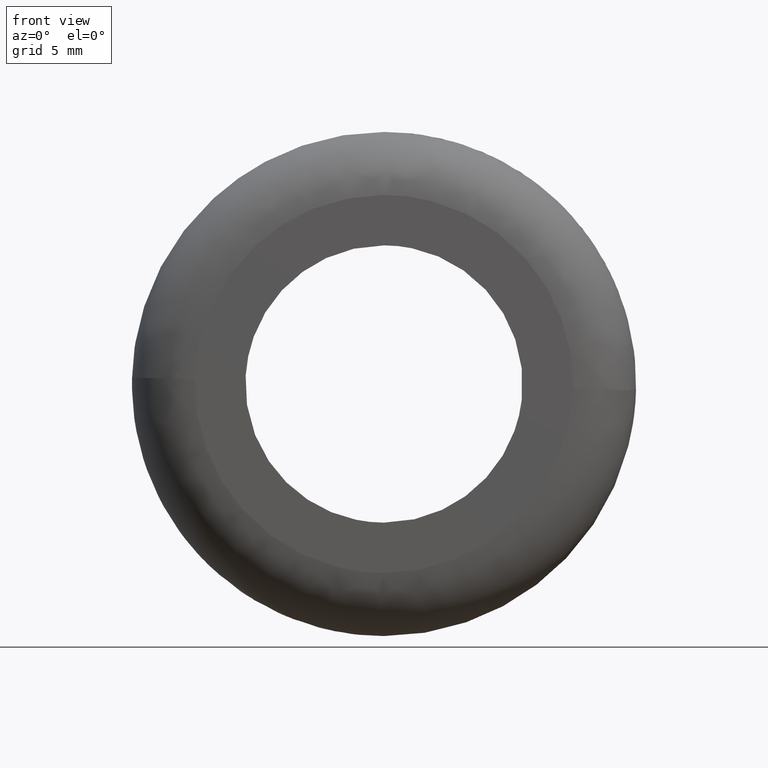
[diagram: clean part render]
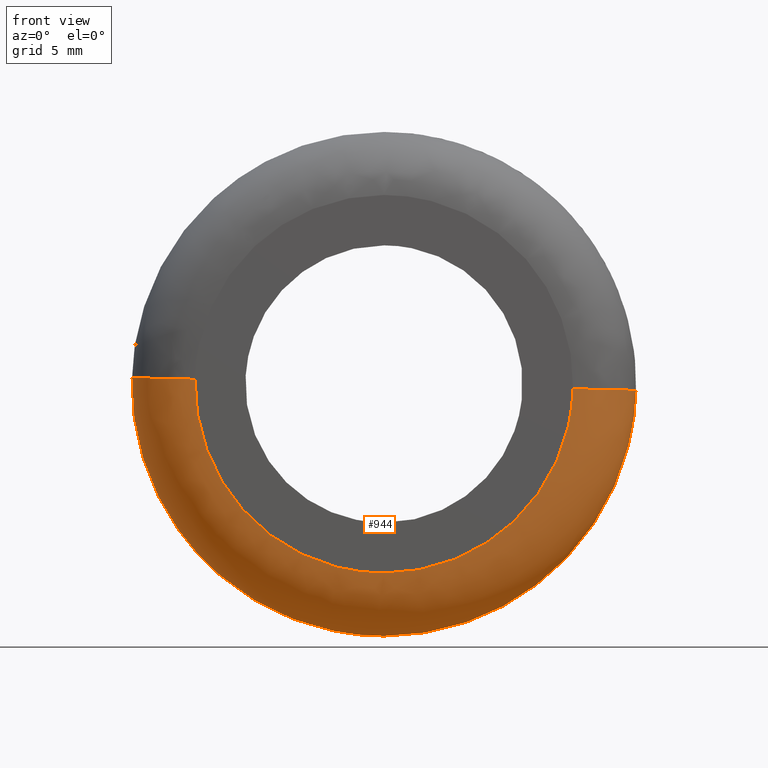
[diagram: same view with one face highlighted and labeled with its STEP entity id]
A machine part, front view. The second image highlights one B-rep face of the part: STEP entity #944.
In plain terms, the highlighted face is a freeform B-spline surface patch.
Its self-contained STEP definition (entity closure, byte-faithful):
#137=CARTESIAN_POINT('',(19.993683785665869,4.999999999963970,-0.502601908872003));
#138=VERTEX_POINT('',#137);
#154=CARTESIAN_POINT('',(0.0,5.0,-20.0));
#155=VERTEX_POINT('',#154);
#156=CARTESIAN_POINT('',(0.0,5.0,-20.0));
#157=CARTESIAN_POINT('',(19.503557523602723,5.0,-20.0));
#158=CARTESIAN_POINT('',(19.993683785665869,4.999999999963970,-0.502601908872003));
#166=(BOUNDED_CURVE()B_SPLINE_CURVE(2,(#156,#157,#158),.UNSPECIFIED.,.F.,.U.)B_SPLINE_CURVE_WITH_KNOTS((3,3),(0.0,0.245579891769716),.UNSPECIFIED.)CURVE()GEOMETRIC_REPRESENTATION_ITEM()RATIONAL_B_SPLINE_CURVE((1.0,0.712285260094835,0.989826157681368))REPRESENTATION_ITEM(''));
#167=EDGE_CURVE('',#155,#138,#166,.T.);
#169=CARTESIAN_POINT('',(-13.086792487373920,5.0,-15.124016080142621));
#170=VERTEX_POINT('',#169);
#171=CARTESIAN_POINT('',(-13.086792487373925,5.000000000000001,-15.124016080142617));
#172=CARTESIAN_POINT('',(-7.451762688190008,5.0,-20.0));
#173=CARTESIAN_POINT('',(0.0,5.0,-20.0));
#181=(BOUNDED_CURVE()B_SPLINE_CURVE(2,(#171,#172,#173),.UNSPECIFIED.,.F.,.U.)B_SPLINE_CURVE_WITH_KNOTS((3,3),(0.885882132988790,1.0),.UNSPECIFIED.)CURVE()GEOMETRIC_REPRESENTATION_ITEM()RATIONAL_B_SPLINE_CURVE((0.854663299542762,0.866302602427844,1.0))REPRESENTATION_ITEM(''));
#182=EDGE_CURVE('',#170,#155,#181,.T.);
#226=CARTESIAN_POINT('',(-19.993683785665858,4.999999999963972,0.502601908872007));
#227=VERTEX_POINT('',#226);
#228=CARTESIAN_POINT('',(-19.993683785665858,4.999999999963972,0.502601908872007));
#229=CARTESIAN_POINT('',(-19.999999999999996,5.0,0.251340642472851));
#230=CARTESIAN_POINT('',(-20.0,5.0,-3.673819E-016));
#231=CARTESIAN_POINT('',(-20.0,5.0,-9.142026655511200));
#232=CARTESIAN_POINT('',(-13.086792487373922,5.0,-15.124016080142626));
#240=(BOUNDED_CURVE()B_SPLINE_CURVE(2,(#228,#229,#230,#231,#232),.UNSPECIFIED.,.F.,.U.)B_SPLINE_CURVE_WITH_KNOTS((3,2,3),(0.745579891769716,0.750000000000000,0.885882132988790),.UNSPECIFIED.)CURVE()GEOMETRIC_REPRESENTATION_ITEM()RATIONAL_B_SPLINE_CURVE((0.989826157681368,0.994821521091713,1.0,0.840804178758703,0.854663299542762))REPRESENTATION_ITEM(''));
#241=EDGE_CURVE('',#227,#170,#240,.T.);
#856=CARTESIAN_POINT('',(-19.981519166674136,5.348620922722298,0.502296114257239));
#857=CARTESIAN_POINT('',(-20.483815280931395,5.348620922722299,-19.479223052416906));
#858=CARTESIAN_POINT('',(-0.502296114257244,5.348620922722298,-19.981519166674136));
#859=CARTESIAN_POINT('',(19.479223052416906,5.348620922722299,-20.483815280931395));
#860=CARTESIAN_POINT('',(19.981519166674136,5.348620922722298,-0.502296114257246));
#861=CARTESIAN_POINT('',(-20.382257219483595,-0.386678407463598,0.512369881175668));
#862=CARTESIAN_POINT('',(-20.894627100659257,-0.386678407463598,-19.869887338307915));
#863=CARTESIAN_POINT('',(-0.512369881175673,-0.386678407463598,-20.382257219483595));
#864=CARTESIAN_POINT('',(19.869887338307915,-0.386678407463598,-20.894627100659257));
#865=CARTESIAN_POINT('',(20.382257219483595,-0.386678407463598,-0.512369881175675));
#866=CARTESIAN_POINT('',(-14.648619477158034,0.012038247250253,0.368237498922565));
#867=CARTESIAN_POINT('',(-15.016856976080604,0.012038247250253,-14.280381978235466));
#868=CARTESIAN_POINT('',(-0.368237498922569,0.012038247250253,-14.648619477158034));
#869=CARTESIAN_POINT('',(14.280381978235466,0.012038247250253,-15.016856976080604));
#870=CARTESIAN_POINT('',(14.648619477158034,0.012038247250253,-0.368237498922570));
#878=(BOUNDED_SURFACE()B_SPLINE_SURFACE(2,2,((#856,#861,#866),(#857,#862,#867),(#858,#863,#868),(#859,#864,#869),(#860,#865,#870)),.UNSPECIFIED.,.F.,.F.,.U.)B_SPLINE_SURFACE_WITH_KNOTS((3,2,3),(3,3),(0.0,33.116923622001451,66.233847244002902),(0.0,9.111851625964388),.UNSPECIFIED.)GEOMETRIC_REPRESENTATION_ITEM()RATIONAL_B_SPLINE_SURFACE(((0.910892941386805,0.599412934105556,0.915966621324616),(0.644098575789570,0.423848950436964,0.647686209279166),(0.910892941386805,0.599412934105556,0.915966621324616),(0.644098575789570,0.423848950436964,0.647686209279166),(0.910892941386805,0.599412934105556,0.915966621324616)))REPRESENTATION_ITEM('')SURFACE());
#879=ORIENTED_EDGE('',*,*,#241,.T.);
#880=ORIENTED_EDGE('',*,*,#182,.T.);
#881=ORIENTED_EDGE('',*,*,#167,.T.);
#882=CARTESIAN_POINT('',(14.995262839473099,-3.951179E-016,-0.376951431683386));
#883=VERTEX_POINT('',#882);
#884=CARTESIAN_POINT('',(19.993683785665866,4.999999999963970,-0.502601908872003));
#885=CARTESIAN_POINT('',(19.993683785593962,4.487558E-010,-0.502601908864937));
#886=CARTESIAN_POINT('',(14.995262839473099,-3.951179E-016,-0.376951431683386));
#894=(BOUNDED_CURVE()B_SPLINE_CURVE(2,(#884,#885,#886),.UNSPECIFIED.,.F.,.U.)B_SPLINE_CURVE_WITH_KNOTS((3,3),(-1.723441281969931,-0.263586879020719),.UNSPECIFIED.)CURVE()GEOMETRIC_REPRESENTATION_ITEM()RATIONAL_B_SPLINE_CURVE((0.883897567133435,0.626638727256570,0.888510409029225))REPRESENTATION_ITEM(''));
#895=EDGE_CURVE('',#138,#883,#894,.T.);
#896=ORIENTED_EDGE('',*,*,#895,.T.);
#897=CARTESIAN_POINT('',(0.0,-2.664535E-015,-15.0));
#898=VERTEX_POINT('',#897);
#899=CARTESIAN_POINT('',(0.0,-2.664535E-015,-15.0));
#900=CARTESIAN_POINT('',(14.627668142655715,-2.664535E-015,-15.0));
#901=CARTESIAN_POINT('',(14.995262839473106,-3.951179E-016,-0.376951431683386));
#909=(BOUNDED_CURVE()B_SPLINE_CURVE(2,(#899,#900,#901),.UNSPECIFIED.,.F.,.U.)B_SPLINE_CURVE_WITH_KNOTS((3,3),(0.0,0.245579891769162),.UNSPECIFIED.)CURVE()GEOMETRIC_REPRESENTATION_ITEM()RATIONAL_B_SPLINE_CURVE((1.0,0.712285260095484,0.989826157680116))REPRESENTATION_ITEM(''));
#910=EDGE_CURVE('',#898,#883,#909,.T.);
#911=ORIENTED_EDGE('',*,*,#910,.F.);
#912=CARTESIAN_POINT('',(-14.995262839473099,-3.951179E-016,0.376951431683387));
#913=VERTEX_POINT('',#912);
#914=CARTESIAN_POINT('',(-14.995262839473099,-3.951179E-016,0.376951431683387));
#915=CARTESIAN_POINT('',(-15.0,-2.664535E-015,0.188505481878393));
#916=CARTESIAN_POINT('',(-15.0,-2.664535E-015,-3.673819E-016));
#917=CARTESIAN_POINT('',(-14.999999999999996,-2.664535E-015,-14.999999999999996));
#918=CARTESIAN_POINT('',(0.0,-2.664535E-015,-15.0));
#926=(BOUNDED_CURVE()B_SPLINE_CURVE(2,(#914,#915,#916,#917,#918),.UNSPECIFIED.,.F.,.U.)B_SPLINE_CURVE_WITH_KNOTS((3,2,3),(0.745579891769161,0.750000000000000,1.0),.UNSPECIFIED.)CURVE()GEOMETRIC_REPRESENTATION_ITEM()RATIONAL_B_SPLINE_CURVE((0.989826157680116,0.994821521091063,1.0,0.707106781186547,1.0))REPRESENTATION_ITEM(''));
#927=EDGE_CURVE('',#913,#898,#926,.T.);
#928=ORIENTED_EDGE('',*,*,#927,.F.);
#929=CARTESIAN_POINT('',(-19.993683785665862,4.999999999963971,0.502601908872007));
#930=CARTESIAN_POINT('',(-19.993683785593969,4.487496E-010,0.502601908864940));
#931=CARTESIAN_POINT('',(-14.995262839473105,-3.951179E-016,0.376951431683387));
#939=(BOUNDED_CURVE()B_SPLINE_CURVE(2,(#929,#930,#931),.UNSPECIFIED.,.F.,.U.)B_SPLINE_CURVE_WITH_KNOTS((3,3),(-1.723441281969931,-0.263586879020717),.UNSPECIFIED.)CURVE()GEOMETRIC_REPRESENTATION_ITEM()RATIONAL_B_SPLINE_CURVE((0.883897567133435,0.626638727256570,0.888510409029225))REPRESENTATION_ITEM(''));
#940=EDGE_CURVE('',#227,#913,#939,.T.);
#941=ORIENTED_EDGE('',*,*,#940,.F.);
#942=EDGE_LOOP('',(#879,#880,#881,#896,#911,#928,#941));
#943=FACE_OUTER_BOUND('',#942,.T.);
#944=ADVANCED_FACE('',(#943),#878,.T.);